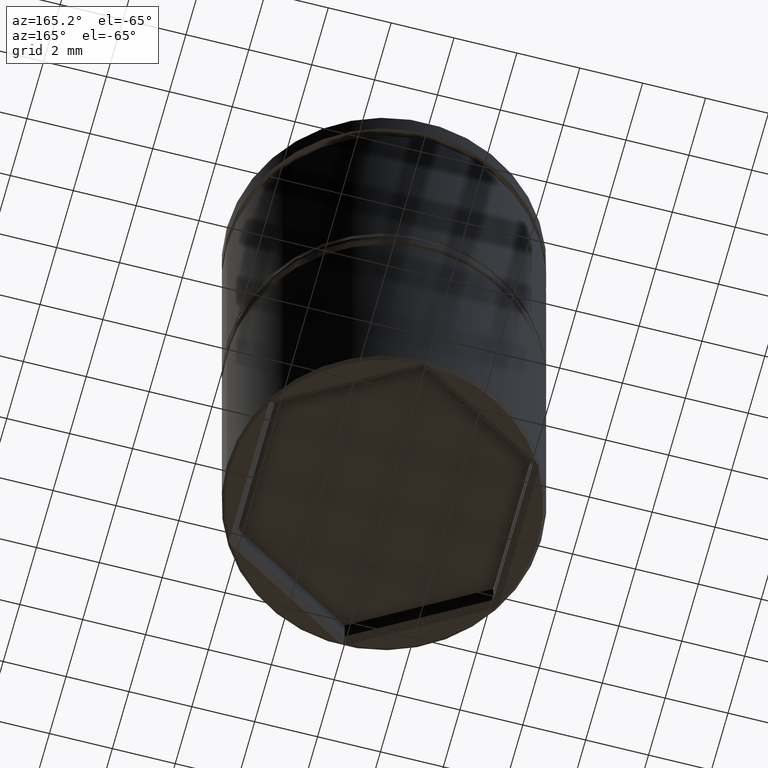
[diagram: clean part render]
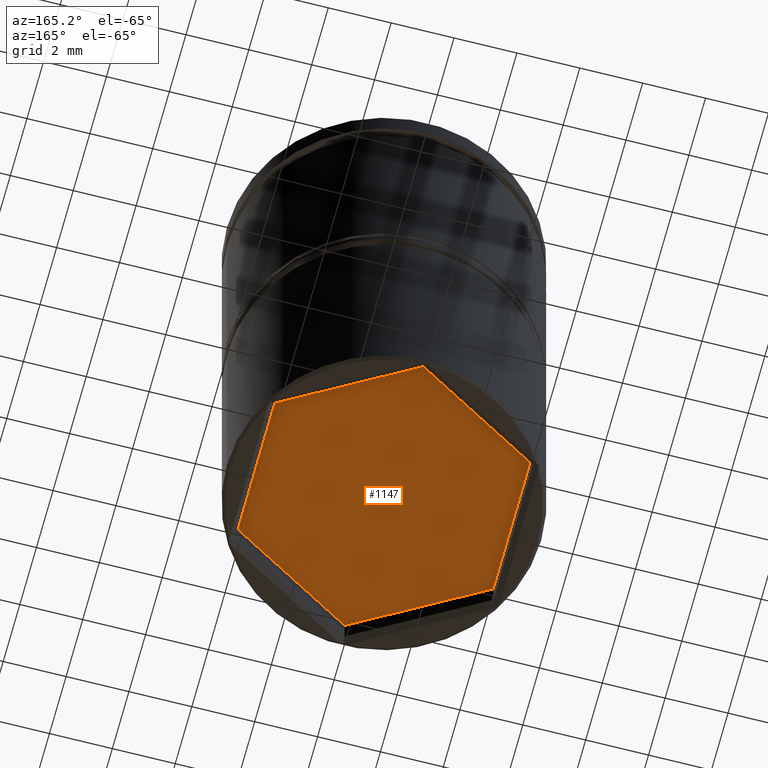
[diagram: same view with one face highlighted and labeled with its STEP entity id]
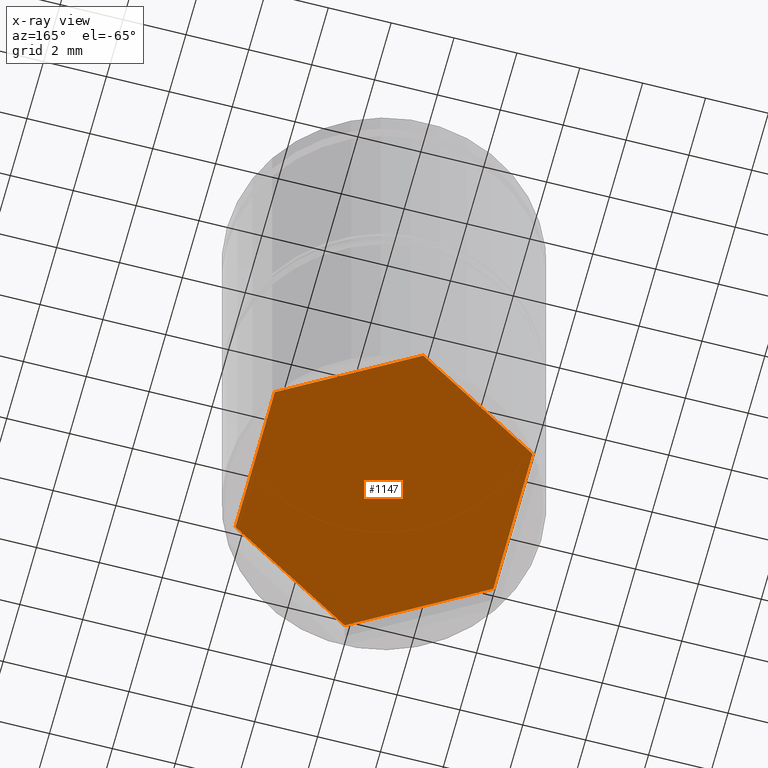
[diagram: x-ray of the same camera — body ghosted, the highlighted face saturated]
A machine part, auxiliary view. The second image highlights one B-rep face of the part: STEP entity #1147.
The next image is the same camera in x-ray: the body ghosted, the highlighted face saturated — about 0% of this face is hidden behind the body in this view.
In plain terms, the highlighted planar face has unit normal (0, 0, -1).
Its self-contained STEP definition (entity closure, byte-faithful):
#18 = DIRECTION ( 'NONE',  ( -0.8660254037844387076, -0.4999999999999999445, 0.000000000000000000 ) ) ;
#33 = CARTESIAN_POINT ( 'NONE',  ( -8.646952822150503169E-16, -4.734272207354920603, -16.50000000000000000 ) ) ;
#36 = VECTOR ( 'NONE', #646, 1000.000000000000000 ) ;
#37 = CARTESIAN_POINT ( 'NONE',  ( -4.099999999999990763, 2.367136103677462078, -16.50000000000000000 ) ) ;
#74 = EDGE_CURVE ( 'NONE', #152, #190, #362, .T. ) ;
#124 = CARTESIAN_POINT ( 'NONE',  ( -4.099999999999990763, -2.367136103677459857, -16.50000000000000000 ) ) ;
#138 = PLANE ( 'NONE',  #200 ) ;
#139 = ORIENTED_EDGE ( 'NONE', *, *, #533, .T. ) ;
#152 = VERTEX_POINT ( 'NONE', #412 ) ;
#190 = VERTEX_POINT ( 'NONE', #1056 ) ;
#200 = AXIS2_PLACEMENT_3D ( 'NONE', #1381, #697, #1240 ) ;
#279 = DIRECTION ( 'NONE',  ( 0.000000000000000000, 1.000000000000000000, 0.000000000000000000 ) ) ;
#304 = VERTEX_POINT ( 'NONE', #124 ) ;
#324 = ORIENTED_EDGE ( 'NONE', *, *, #379, .T. ) ;
#362 = LINE ( 'NONE', #37, #1016 ) ;
#379 = EDGE_CURVE ( 'NONE', #380, #304, #1183, .T. ) ;
#380 = VERTEX_POINT ( 'NONE', #882 ) ;
#385 = CARTESIAN_POINT ( 'NONE',  ( 4.099999999999990763, -2.367136103677460301, -16.50000000000000000 ) ) ;
#399 = ORIENTED_EDGE ( 'NONE', *, *, #1000, .T. ) ;
#412 = CARTESIAN_POINT ( 'NONE',  ( -4.099999999999990763, 2.367136103677462078, -16.50000000000000000 ) ) ;
#414 = CARTESIAN_POINT ( 'NONE',  ( 0.000000000000000000, 4.734272207354920603, -16.50000000000000000 ) ) ;
#481 = ORIENTED_EDGE ( 'NONE', *, *, #1065, .T. ) ;
#489 = LINE ( 'NONE', #1243, #1154 ) ;
#533 = EDGE_CURVE ( 'NONE', #304, #152, #489, .T. ) ;
#575 = VECTOR ( 'NONE', #1269, 1000.000000000000227 ) ;
#643 = CARTESIAN_POINT ( 'NONE',  ( 4.099999999999990763, -2.367136103677460301, -16.50000000000000000 ) ) ;
#646 = DIRECTION ( 'NONE',  ( -0.8660254037844385966, 0.5000000000000001110, 0.000000000000000000 ) ) ;
#662 = DIRECTION ( 'NONE',  ( 0.8660254037844388186, 0.4999999999999997780, 0.000000000000000000 ) ) ;
#669 = EDGE_LOOP ( 'NONE', ( #1374, #399, #742, #481, #324, #139 ) ) ;
#676 = LINE ( 'NONE', #776, #1249 ) ;
#692 = DIRECTION ( 'NONE',  ( 0.000000000000000000, -1.000000000000000000, 0.000000000000000000 ) ) ;
#697 = DIRECTION ( 'NONE',  ( 0.000000000000000000, 0.000000000000000000, -1.000000000000000000 ) ) ;
#732 = LINE ( 'NONE', #414, #575 ) ;
#742 = ORIENTED_EDGE ( 'NONE', *, *, #812, .T. ) ;
#776 = CARTESIAN_POINT ( 'NONE',  ( 4.099999999999990763, 2.367136103677458969, -16.50000000000000000 ) ) ;
#812 = EDGE_CURVE ( 'NONE', #997, #818, #676, .T. ) ;
#818 = VERTEX_POINT ( 'NONE', #385 ) ;
#862 = VECTOR ( 'NONE', #18, 1000.000000000000000 ) ;
#882 = CARTESIAN_POINT ( 'NONE',  ( -8.646952822150503169E-16, -4.734272207354920603, -16.50000000000000000 ) ) ;
#958 = LINE ( 'NONE', #643, #862 ) ;
#975 = FACE_OUTER_BOUND ( 'NONE', #669, .T. ) ;
#997 = VERTEX_POINT ( 'NONE', #1054 ) ;
#1000 = EDGE_CURVE ( 'NONE', #190, #997, #732, .T. ) ;
#1016 = VECTOR ( 'NONE', #662, 1000.000000000000114 ) ;
#1054 = CARTESIAN_POINT ( 'NONE',  ( 4.099999999999990763, 2.367136103677458969, -16.50000000000000000 ) ) ;
#1056 = CARTESIAN_POINT ( 'NONE',  ( 0.000000000000000000, 4.734272207354920603, -16.50000000000000000 ) ) ;
#1065 = EDGE_CURVE ( 'NONE', #818, #380, #958, .T. ) ;
#1147 = ADVANCED_FACE ( 'NONE', ( #975 ), #138, .T. ) ;
#1154 = VECTOR ( 'NONE', #279, 1000.000000000000000 ) ;
#1183 = LINE ( 'NONE', #33, #36 ) ;
#1240 = DIRECTION ( 'NONE',  ( -1.000000000000000000, 0.000000000000000000, -0.000000000000000000 ) ) ;
#1243 = CARTESIAN_POINT ( 'NONE',  ( -4.099999999999990763, -2.367136103677459857, -16.50000000000000000 ) ) ;
#1249 = VECTOR ( 'NONE', #692, 1000.000000000000000 ) ;
#1269 = DIRECTION ( 'NONE',  ( 0.8660254037844384856, -0.5000000000000002220, 0.000000000000000000 ) ) ;
#1374 = ORIENTED_EDGE ( 'NONE', *, *, #74, .T. ) ;
#1381 = CARTESIAN_POINT ( 'NONE',  ( 0.000000000000000000, 0.000000000000000000, -16.50000000000000000 ) ) ;